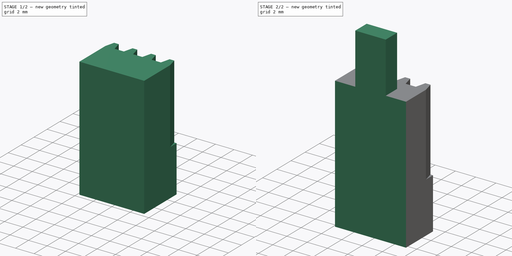
[diagram: build sequence overview — one tinted view per stage of 2, left to right]
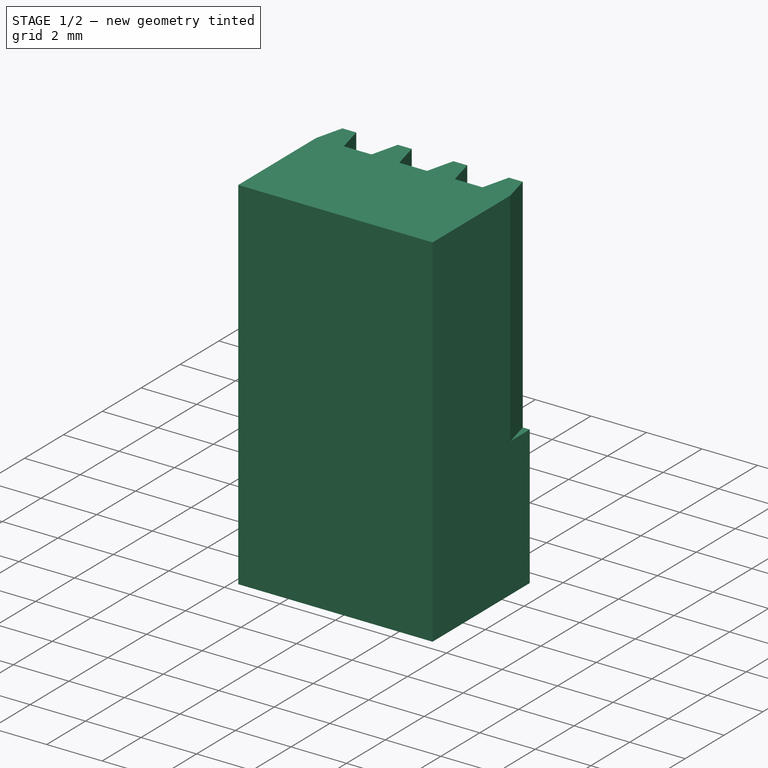
[diagram: stage 1 of 2 — iso view after this stage's code; geometry added in this stage tinted green]
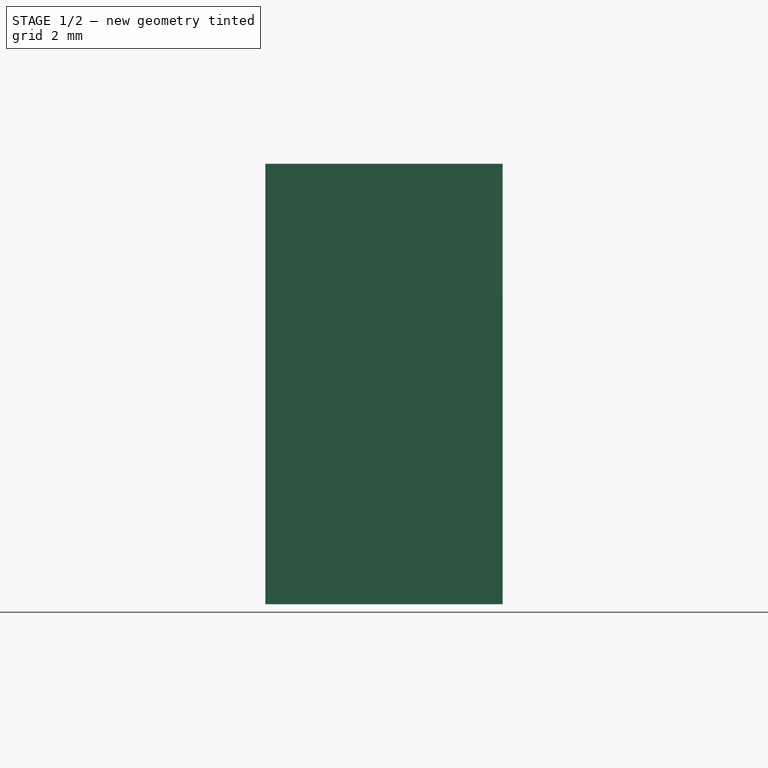
[diagram: stage 1 of 2 — front view after this stage's code; geometry added in this stage tinted green]
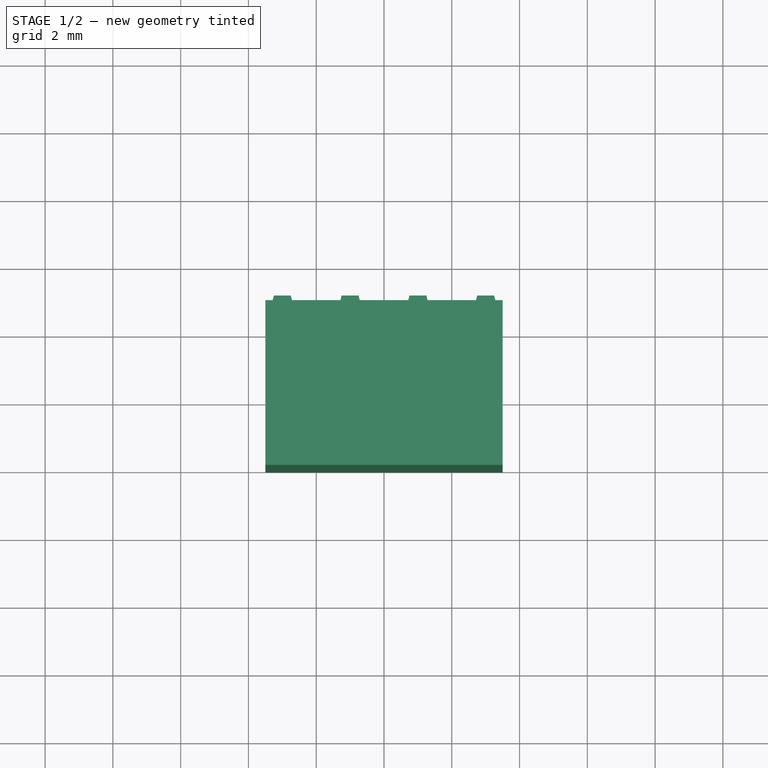
[diagram: stage 1 of 2 — top view after this stage's code; geometry added in this stage tinted green]
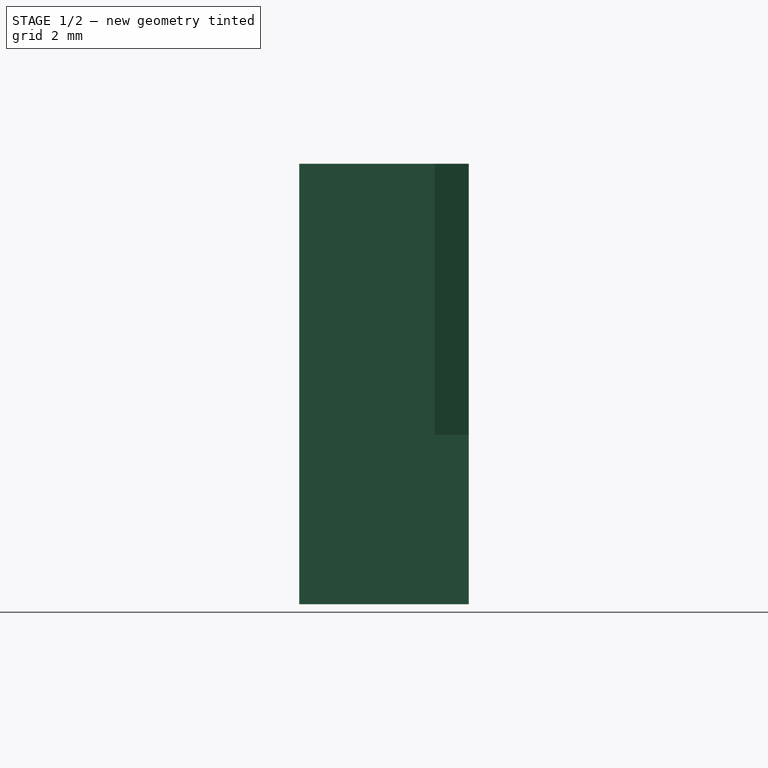
[diagram: stage 1 of 2 — right view after this stage's code; geometry added in this stage tinted green]
FCSTD DOCUMENT  (FreeCAD 0.15R4671 (Git))
Label: Belt Tensioner
License: All rights reserved
LicenseURL: http://de.wikipedia.org/wiki/Alle_Rechte_vorbehalten
objects: Sketcher::SketchObject×4, PartDesign::Pad×3, PartDesign::Pocket×1
note: 12 computed .brp shape members not serialized (recipe doc carries the construction recipe); baked Part::Feature solids carry a one-line shape summary decoded from their .brp

FEATURE [Sketcher::SketchObject] Sketch
  sketch-geometry (18):
    g0: LineSegment StartX=-3.5 StartY=2 StartZ=0 EndX=-3.25 EndY=3 EndZ=0
    g1: LineSegment StartX=-3.25 StartY=3 StartZ=0 EndX=-2.75 EndY=3 EndZ=0
    g2: LineSegment StartX=-2.75 StartY=3 StartZ=0 EndX=-2.5 EndY=2 EndZ=0
    g3: LineSegment StartX=-2.5 StartY=2 StartZ=0 EndX=-1.5 EndY=2 EndZ=0
    g4: LineSegment StartX=-1.5 StartY=2 StartZ=0 EndX=-1.25 EndY=3 EndZ=0
    g5: LineSegment StartX=-1.25 StartY=3 StartZ=0 EndX=-0.75 EndY=3 EndZ=0
    g6: LineSegment StartX=-0.75 StartY=3 StartZ=0 EndX=-0.5 EndY=2 EndZ=0
    g7: LineSegment StartX=-0.5 StartY=2 StartZ=0 EndX=0.5 EndY=2 EndZ=0
    g8: LineSegment StartX=0.5 StartY=2 StartZ=0 EndX=0.75 EndY=3 EndZ=0
    g9: LineSegment StartX=0.75 StartY=3 StartZ=0 EndX=1.25 EndY=3 EndZ=0
    g10: LineSegment StartX=1.25 StartY=3 StartZ=0 EndX=1.5 EndY=2 EndZ=0
    g11: LineSegment StartX=1.5 StartY=2 StartZ=0 EndX=2.5 EndY=2 EndZ=0
    g12: LineSegment StartX=2.5 StartY=2 StartZ=0 EndX=2.75 EndY=3 EndZ=0
    g13: LineSegment StartX=2.75 StartY=3 StartZ=0 EndX=3.25 EndY=3 EndZ=0
    g14: LineSegment StartX=3.25 StartY=3 StartZ=0 EndX=3.5 EndY=2 EndZ=0
    g15: LineSegment StartX=3.5 StartY=2 StartZ=0 EndX=3.5 EndY=-2 EndZ=0
    g16: LineSegment StartX=3.5 StartY=-2 StartZ=0 EndX=-3.5 EndY=-2 EndZ=0
    g17: LineSegment StartX=-3.5 StartY=-2 StartZ=0 EndX=-3.5 EndY=2 EndZ=0
  constraints (54):
    c: Coincident(g0,g1)
    c: Horizontal(g1)
    c: Coincident(g1,g2)
    c: Coincident(g2,g3)
    c: Horizontal(g3)
    c: Coincident(g3,g4)
    c: Coincident(g4,g5)
    c: Horizontal(g5)
    c: Coincident(g5,g6)
    c: Coincident(g6,g7)
    c: Horizontal(g7)
    c: Coincident(g7,g8)
    c: Coincident(g8,g9)
    c: Horizontal(g9)
    c: Coincident(g9,g10)
    c: Coincident(g10,g11)
    c: Horizontal(g11)
    c: Coincident(g11,g12)
    c: Coincident(g12,g13)
    c: Horizontal(g13)
    c: Coincident(g13,g14)
    c: Coincident(g14,g15)
    c: Vertical(g15)
    c: Coincident(g15,g16)
    c: Horizontal(g16)
    c: Coincident(g16,g17)
    c: Coincident(g17,g0)
    c: Vertical(g17)
    c: Equal(g0,g4)
    c: Equal(g4,g8)
    c: Equal(g8,g12)
    c: Parallel(g12,g8)
    c: Parallel(g8,g4)
    c: Parallel(g4,g0)
    c: Equal(g2,g6)
    c: Equal(g6,g10)
    c: Equal(g10,g14)
    c: Parallel(g2,g6)
    c: Parallel(g6,g10)
    c: Parallel(g10,g14)
    c: Equal(g13,g9)
    c: Equal(g9,g5)
    c: Equal(g5,g1)
    c: Equal(g3,g7)
    c: Equal(g7,g11)
    c: Equal(g17,g15)
    c: DistanceX(g1) = 0.5
    c: DistanceX(g3) = 1
    c: Equal(g2,g0)
    c: DistanceY(g0,g0) = 1
    c: DistanceY(g16,g0) = 5
    c: Symmetric(g16,g15,g-2)
    c: Symmetric(g0,g16,g-1)
    c: DistanceX(g5,g9) = 2
FEATURE [PartDesign::Pad] Pad
  Length = 8
  Length2 = 100
  Sketch = -> Sketch
  Type = 0
FEATURE [Sketcher::SketchObject] Sketch001
  ExternalGeometry = -> [Pad]
  Placement = pos=(0,0,0) rot=(1,0,0;3.14159rad)
  Support = -> Pad [Face19]
  sketch-geometry (4):
    g0: LineSegment StartX=-3.5 StartY=2 StartZ=0 EndX=3.5 EndY=2 EndZ=0
    g1: LineSegment StartX=3.5 StartY=2 StartZ=0 EndX=3.5 EndY=-3 EndZ=0
    g2: LineSegment StartX=3.5 StartY=-3 StartZ=0 EndX=-3.5 EndY=-3 EndZ=0
    g3: LineSegment StartX=-3.5 StartY=-3 StartZ=0 EndX=-3.5 EndY=2 EndZ=0
  constraints (11):
    c: Coincident(g0,g1)
    c: Coincident(g1,g2)
    c: Coincident(g2,g3)
    c: Coincident(g3,g0)
    c: Horizontal(g0)
    c: Horizontal(g2)
    c: Vertical(g1)
    c: Vertical(g3)
    c: Coincident(g-3,g0)
    c: Coincident(g0,g-3)
    c: PointOnObject(g-4,g2)
FEATURE [PartDesign::Pad] Pad001
  Length = 5
  Length2 = 100
  Sketch = -> Sketch001
  Type = 0
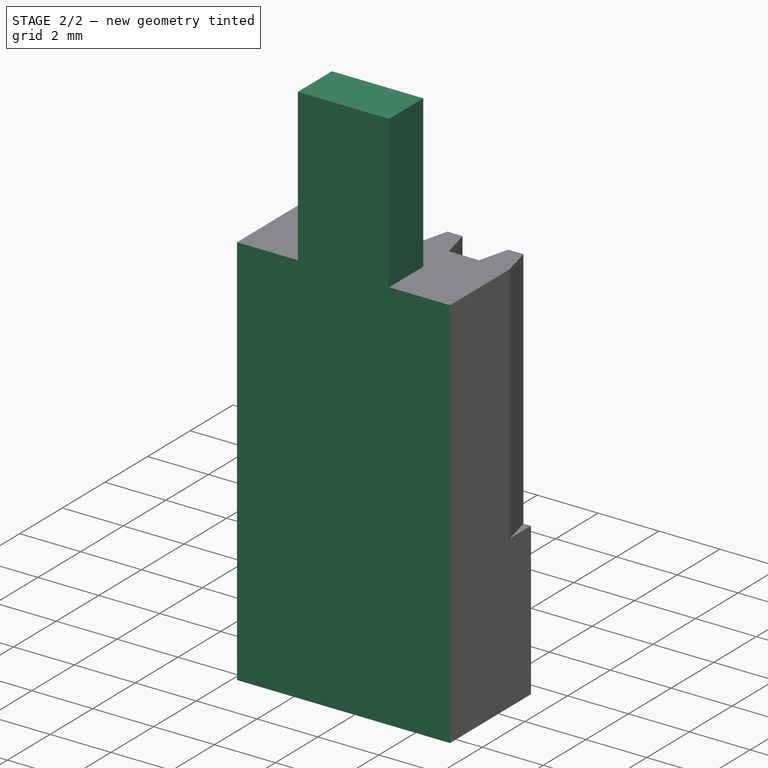
[diagram: stage 2 of 2 — iso view after this stage's code; geometry added in this stage tinted green]
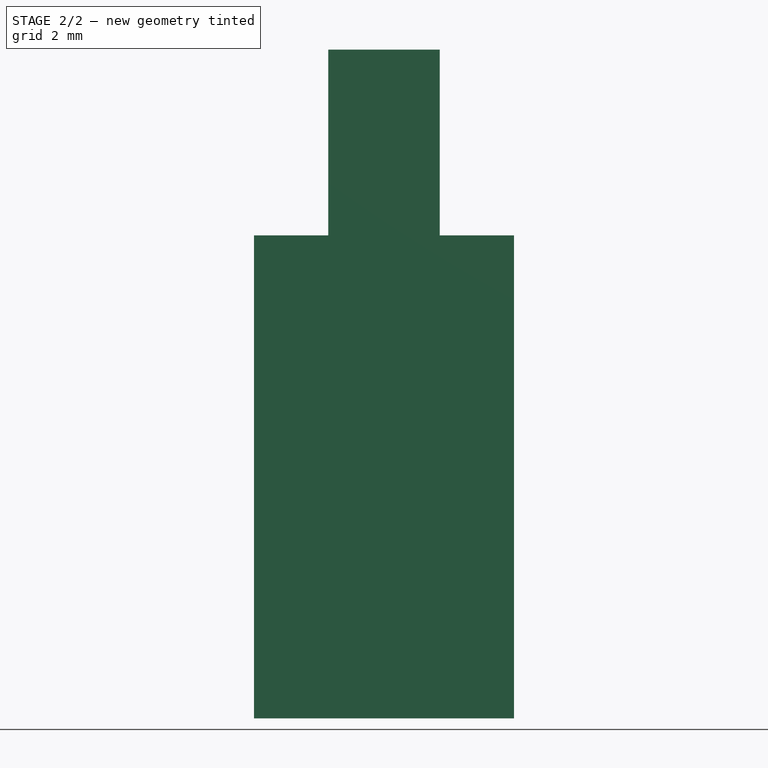
[diagram: stage 2 of 2 — front view after this stage's code; geometry added in this stage tinted green]
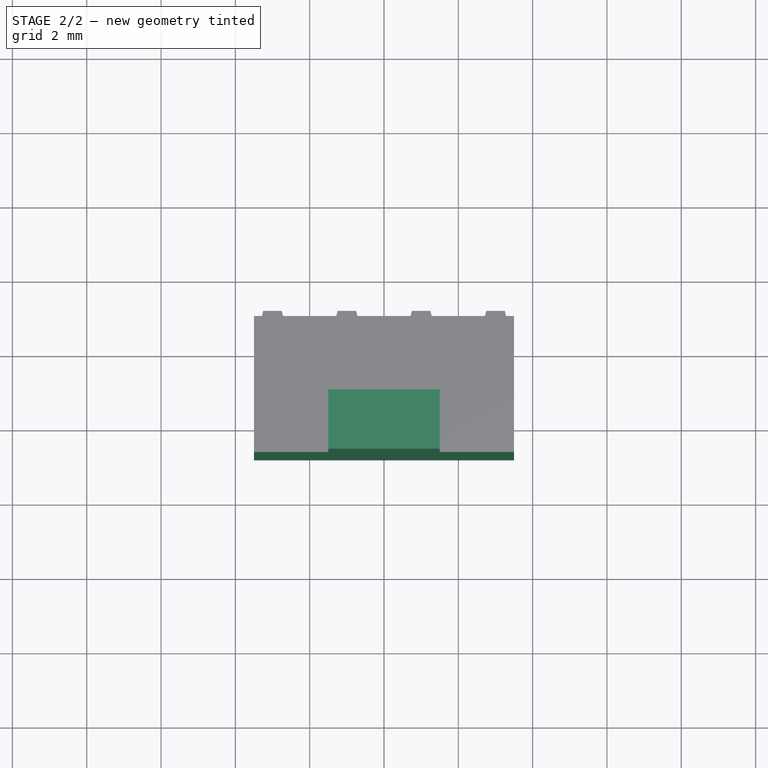
[diagram: stage 2 of 2 — top view after this stage's code; geometry added in this stage tinted green]
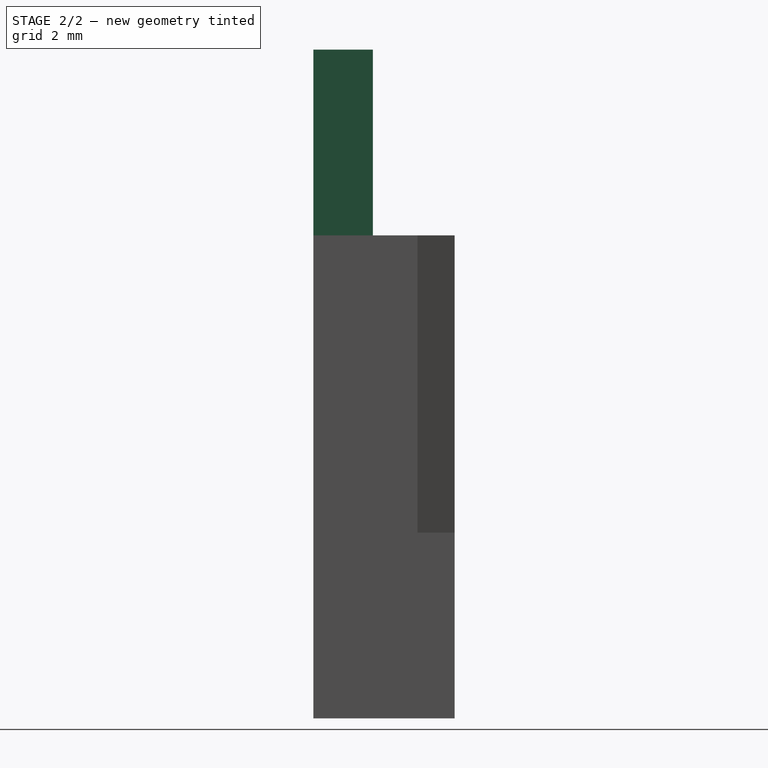
[diagram: stage 2 of 2 — right view after this stage's code; geometry added in this stage tinted green]
FEATURE [Sketcher::SketchObject] Sketch002
  ExternalGeometry = -> [Pad001]
  Placement = pos=(0,0,8) rot=(0,0,1;0rad)
  Support = -> Pad001 [Face1]
  sketch-geometry (4):
    g0: LineSegment StartX=-1.5 StartY=0.8 StartZ=0 EndX=1.5 EndY=0.8 EndZ=0
    g1: LineSegment StartX=1.5 StartY=0.8 StartZ=0 EndX=1.5 EndY=-0.8 EndZ=0
    g2: LineSegment StartX=1.5 StartY=-0.8 StartZ=0 EndX=-1.5 EndY=-0.8 EndZ=0
    g3: LineSegment StartX=-1.5 StartY=-0.8 StartZ=0 EndX=-1.5 EndY=0.8 EndZ=0
  constraints (12):
    c: Coincident(g0,g1)
    c: Coincident(g1,g2)
    c: Coincident(g2,g3)
    c: Coincident(g3,g0)
    c: Horizontal(g0)
    c: Horizontal(g2)
    c: Vertical(g1)
    c: Vertical(g3)
    c: DistanceX(g2,g-4) = -2
    c: Symmetric(g1,g2,g-2)
    c: DistanceY(g-4,g2) = 1.2
    c: DistanceY(g0,g-3) = 1.2
FEATURE [PartDesign::Pad] Pad002
  Length = 5
  Length2 = 100
  Sketch = -> Sketch002
  Type = 0
FEATURE [Sketcher::SketchObject] Sketch003
  ExternalGeometry = -> [Pad002]
  Placement = pos=(0,0,8) rot=(0,0,1;0rad)
  Support = -> Pad002 [Face4]
  sketch-geometry (4):
    g0: LineSegment StartX=-3.5 StartY=-2 StartZ=0 EndX=3.5 EndY=-2 EndZ=0
    g1: LineSegment StartX=3.5 StartY=-2 StartZ=0 EndX=3.5 EndY=-0.8 EndZ=0
    g2: LineSegment StartX=3.5 StartY=-0.8 StartZ=0 EndX=-3.5 EndY=-0.8 EndZ=0
    g3: LineSegment StartX=-3.5 StartY=-0.8 StartZ=0 EndX=-3.5 EndY=-2 EndZ=0
  constraints (11):
    c: Coincident(g0,g1)
    c: Coincident(g1,g2)
    c: Coincident(g2,g3)
    c: Coincident(g3,g0)
    c: Horizontal(g0)
    c: Horizontal(g2)
    c: Vertical(g1)
    c: Vertical(g3)
    c: PointOnObject(g-4,g2)
    c: Coincident(g-3,g0)
    c: Coincident(g0,g-3)
FEATURE [PartDesign::Pocket] Pocket
  Length = 5
  Sketch = -> Sketch003
  Type = 1
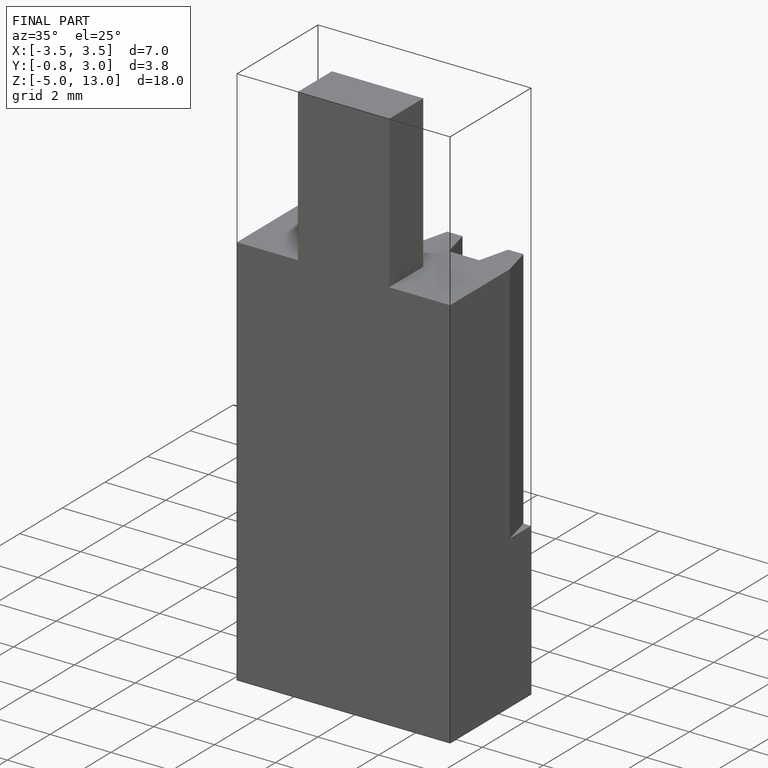
[diagram: finished part — iso view with bounding-box wireframe]
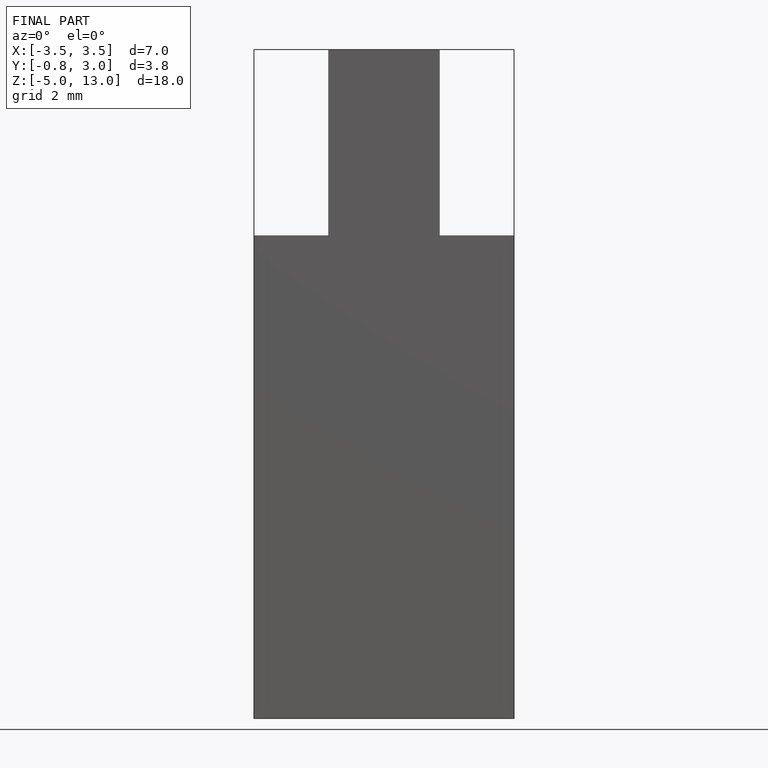
[diagram: finished part — front view with bounding-box wireframe]
